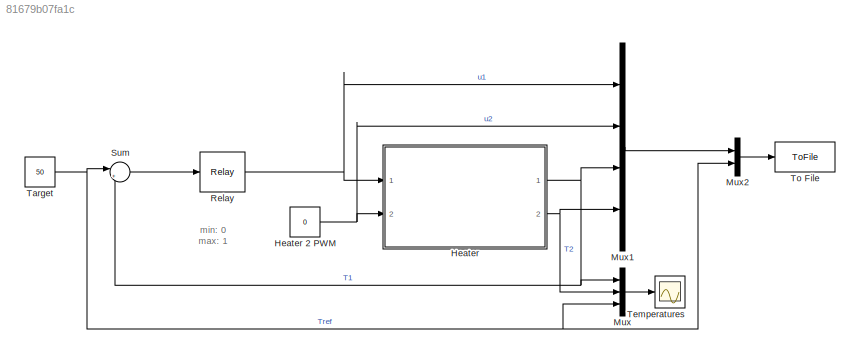
MODEL slx_81679b07fa1c
KIND model
CONFIG AbsTol = auto
CONFIG EnableMultiTasking = on
CONFIG FixedStep = 1e-3
CONFIG MaxStep = auto
CONFIG MinStep = auto
CONFIG RelTol = 1e-3
CONFIG SampleTimeConstraint = Unconstrained
CONFIG SolverName = ode2
CONFIG StartTime = 0.0
CONFIG StopTime = inf
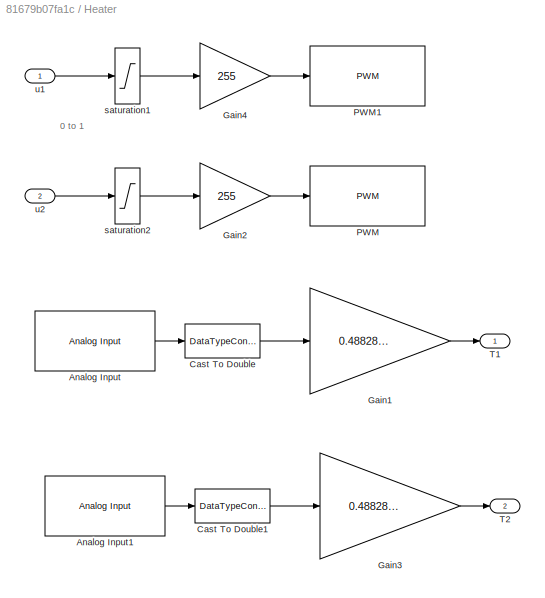
BLOCK [SubSystem] Heater
  Ports = [2, 2]
  RequestExecContextInheritance = off
BLOCK [Constant] Heater 2 PWM
  Value = 0
BLOCK [Reference] Heater/Analog Input  REF=arduinolib/Analog Input
  Ports = [0, 1]
  SourceBlock = arduinolib/Analog Input
  SourceProductBaseCode = ARDUINO
  SourceType = Arduino Analog Input
BLOCK [Reference] Heater/Analog Input1  REF=arduinolib/Analog Input
  Ports = [0, 1]
  SourceBlock = arduinolib/Analog Input
  SourceProductBaseCode = ARDUINO
  SourceType = Arduino Analog Input
BLOCK [DataTypeConversion] Heater/Cast To Double
  OutDataTypeStr = double
  RndMeth = Floor
  SaturateOnIntegerOverflow = off
BLOCK [DataTypeConversion] Heater/Cast To Double1
  OutDataTypeStr = double
  RndMeth = Floor
  SaturateOnIntegerOverflow = off
BLOCK [Gain] Heater/Gain1
  Gain = 0.48828125
BLOCK [Gain] Heater/Gain2
  Gain = 255
BLOCK [Gain] Heater/Gain3
  Gain = 0.48828125
BLOCK [Gain] Heater/Gain4
  Gain = 255
BLOCK [Reference] Heater/PWM  REF=arduinolib/PWM
  Ports = [1]
  SourceBlock = arduinolib/PWM
  SourceProductBaseCode = ARDUINO
  SourceType = Arduino PWM
BLOCK [Reference] Heater/PWM1  REF=arduinolib/PWM
  Ports = [1]
  SourceBlock = arduinolib/PWM
  SourceProductBaseCode = ARDUINO
  SourceType = Arduino PWM
BLOCK [Outport] Heater/T1
  VectorParamsAs1DForOutWhenUnconnected = off
BLOCK [Outport] Heater/T2
  Port = 2
  VectorParamsAs1DForOutWhenUnconnected = off
BLOCK [Saturate] Heater/saturation1
  LowerLimit = 0
  UpperLimit = 1
BLOCK [Saturate] Heater/saturation2
  LowerLimit = 0
  UpperLimit = 1
BLOCK [Inport] Heater/u1
BLOCK [Inport] Heater/u2
  Port = 2
BLOCK [Mux] Mux
  DisplayOption = bar
  Inputs = 3
  Ports = [3, 1]
BLOCK [Mux] Mux1
  DisplayOption = bar
  Ports = [4, 1]
BLOCK [Mux] Mux2
  DisplayOption = bar
  Inputs = 2
  Ports = [2, 1]
BLOCK [Relay] Relay
  OffSwitchValue = -2
  OnOutputValue = 0.7
  OnSwitchValue = 2
BLOCK [Sum] Sum
  Inputs = |+-
  Ports = [2, 1]
BLOCK [Constant] Target
  Value = 50
BLOCK [Scope] Temperatures
  Floating = off
  NumInputPorts = 1
  Ports = [1]
  ScopeSpecificationString = Simulink.scopes.TimeScopeBlockCfg('CurrentConfiguration', extmgr.ConfigurationSet(extmgr.Configuration('Core','General UI',true),extmgr.Configuration('Core','Source UI',true),extmgr.Configuration('Sources','WiredSimulink',true),extmgr.Configuration('Visuals','Time Domain',true,'SerializedDisplays',{struct('MinYLimReal','29.78516','MaxYLimReal','59.08203','YLabelReal','','MinYLimMag','29.78516','Ma...<+1465ch>
BLOCK [ToFile] To File
  Filename = datalog.mat
  MatrixName = datalog
  Ports = [1]
ANNOTATION (root): min: 0 max: 1
ANNOTATION Heater: 0 to 1
NET Heater 2 PWM:1 -> Heater:2, Mux1:2
LINE Heater/Analog Input1:1 -> Heater/Cast To Double1:1
LINE Heater/Analog Input:1 -> Heater/Cast To Double:1
LINE Heater/Cast To Double1:1 -> Heater/Gain3:1
LINE Heater/Cast To Double:1 -> Heater/Gain1:1
LINE Heater/Gain1:1 -> Heater/T1:1
LINE Heater/Gain2:1 -> Heater/PWM:1
LINE Heater/Gain3:1 -> Heater/T2:1
LINE Heater/Gain4:1 -> Heater/PWM1:1
LINE Heater/saturation1:1 -> Heater/Gain4:1
LINE Heater/saturation2:1 -> Heater/Gain2:1
LINE Heater/u1:1 -> Heater/saturation1:1
LINE Heater/u2:1 -> Heater/saturation2:1
NET Heater:1 -> Mux1:3, Mux:1, Sum:2
NET Heater:2 -> Mux1:4, Mux:2
LINE Mux1:1 -> Mux2:1
LINE Mux2:1 -> To File:1
LINE Mux:1 -> Temperatures:1
NET Relay:1 -> Heater:1, Mux1:1
LINE Sum:1 -> Relay:1
NET Target:1 -> Mux2:2, Mux:3, Sum:1
note: NET lines group one-source signal fan-out (src -> all destinations, sorted); 1:1 wires keep LINE
